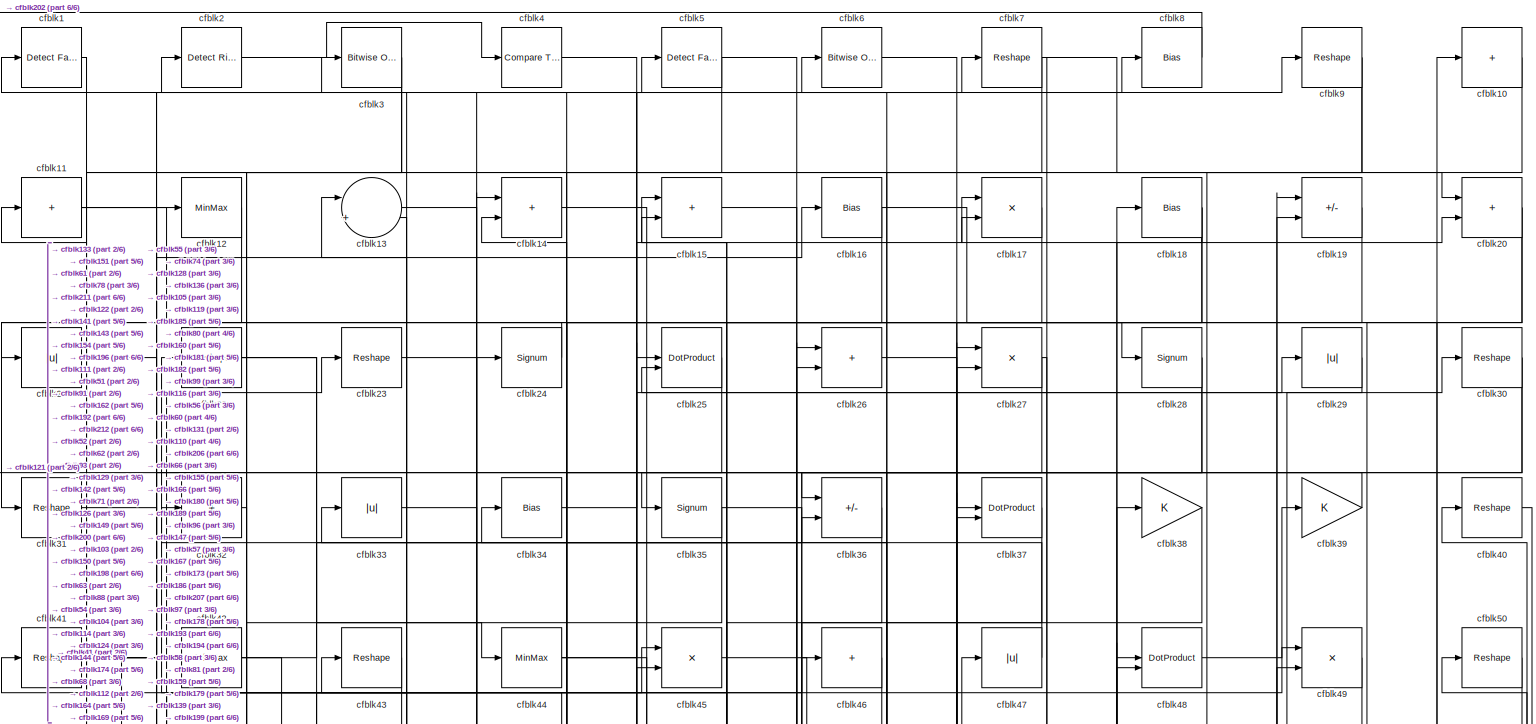
[diagram: root canvas - part 1/6, full width, top band]
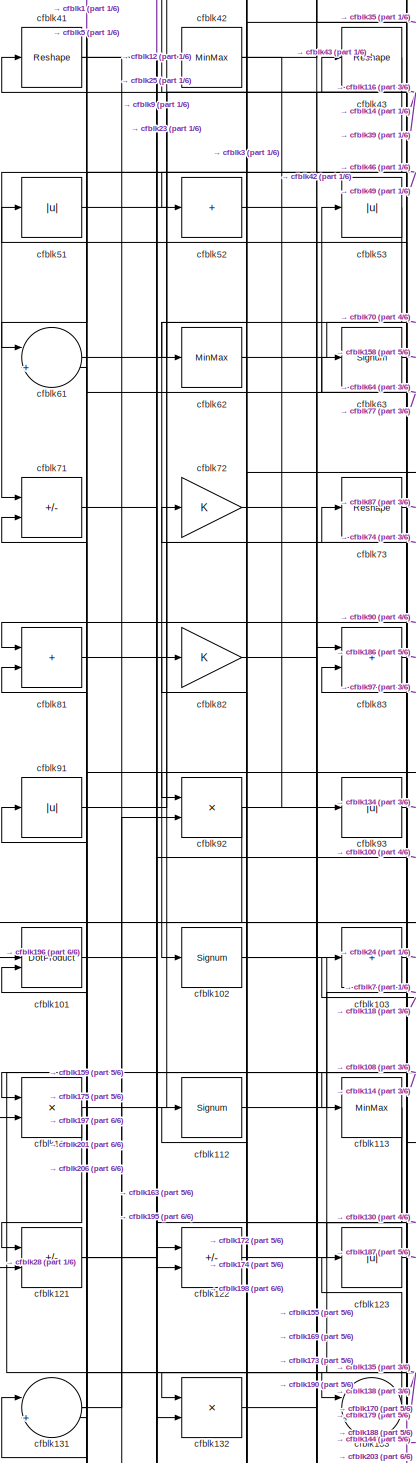
[diagram: root canvas - part 2/6, middle left region]
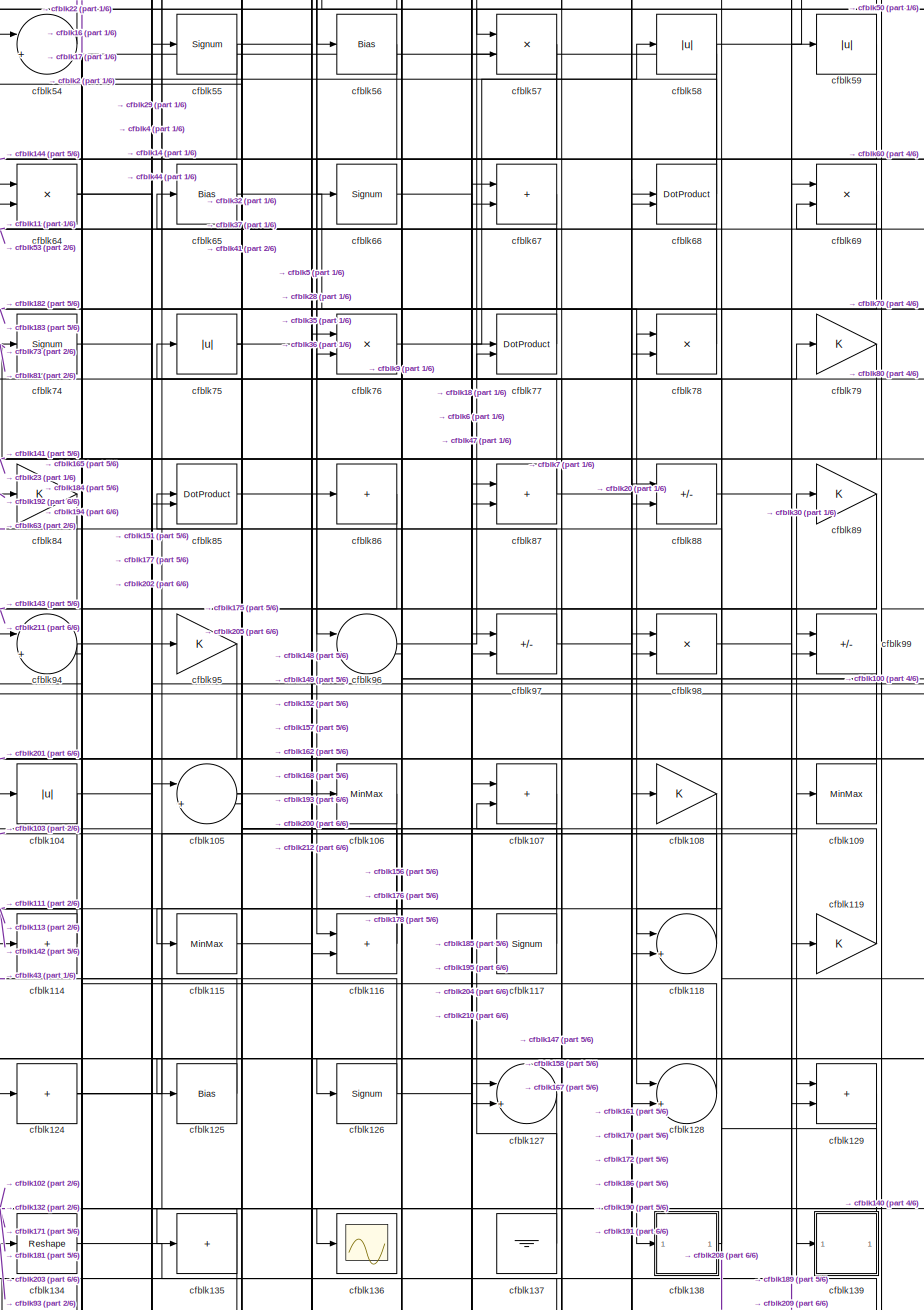
[diagram: root canvas - part 3/6, central region]
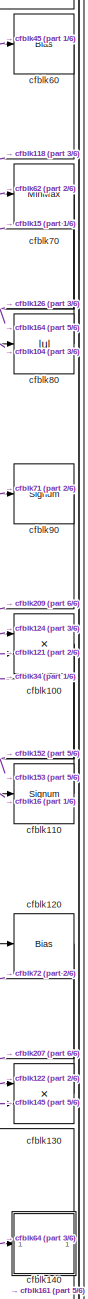
[diagram: root canvas - part 4/6, middle right region]
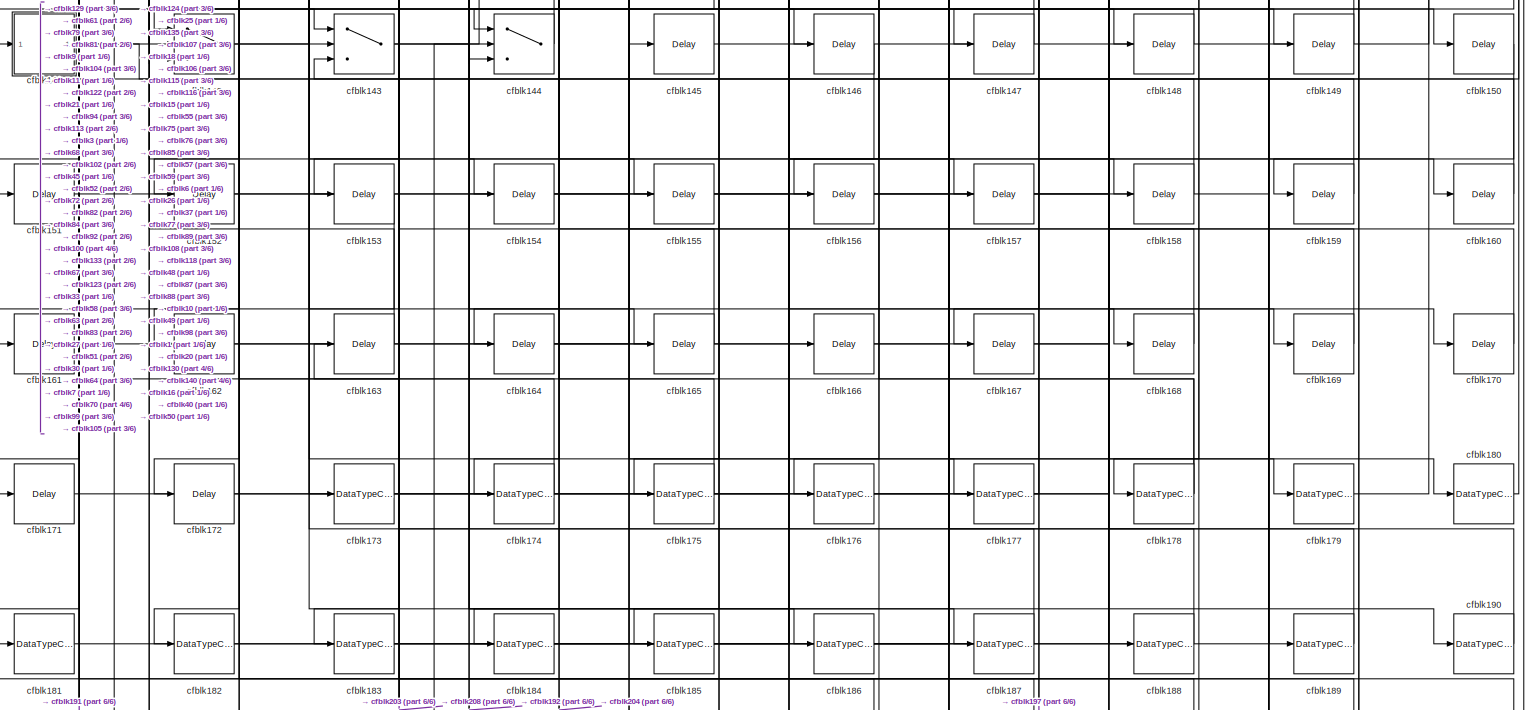
[diagram: root canvas - part 5/6, full width, bottom band]
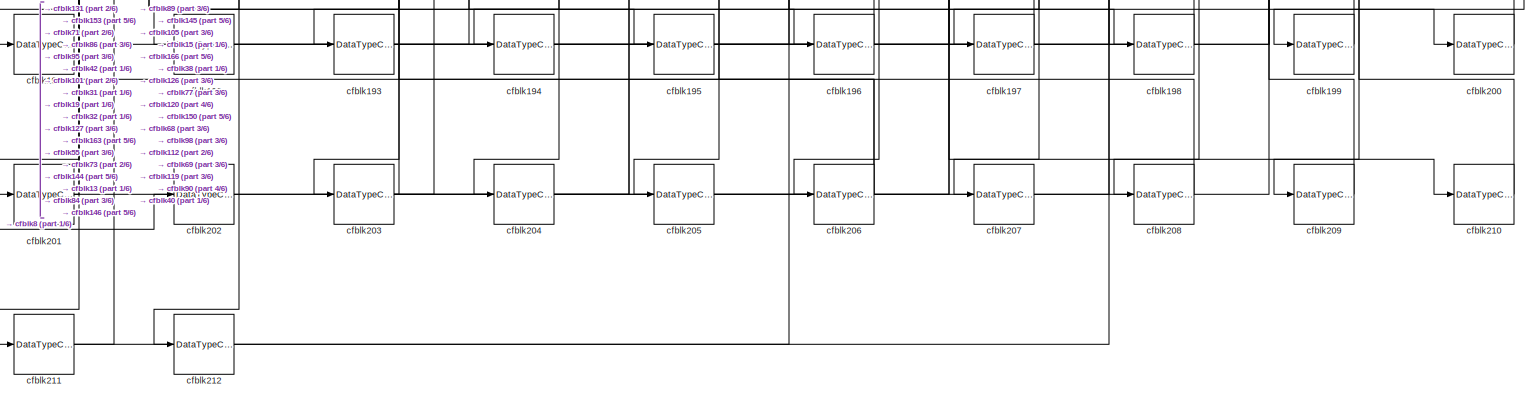
[diagram: root canvas - part 6/6, full width, bottom band]
MODEL slx_0709337c3f1b
KIND model
CONFIG AbsTol = auto
CONFIG EnableMultiTasking = off
CONFIG FixedStep = auto
CONFIG MaxStep = auto
CONFIG MinStep = auto
CONFIG RelTol = 1e-3
CONFIG SampleTimeConstraint = Unconstrained
CONFIG SolverName = VariableStepAuto
CONFIG StartTime = 0.0
CONFIG StopTime = 10.0
BLOCK [Reference] cfblk1  REF=hdlsllib/Logic and Bit
Operations/Detect Fall
Nonpositive
  SourceBlock = hdlsllib/Logic and Bit\nOperations/Detect Fall\nNonpositive
  SourceType = Detect Fall Nonpositive
BLOCK [Sum] cfblk10
  IconShape = rectangular
  Inputs = +
BLOCK [Product] cfblk100
  Inputs = */
  RndMeth = Zero
  SaturateOnIntegerOverflow = on
BLOCK [DotProduct] cfblk101
  OutDataTypeStr = Inherit: Inherit via internal rule
BLOCK [Signum] cfblk102
BLOCK [Sum] cfblk103
  IconShape = rectangular
  Inputs = +
BLOCK [Abs] cfblk104
  SaturateOnIntegerOverflow = off
BLOCK [Sum] cfblk105
  Inputs = |++
BLOCK [MinMax] cfblk106
BLOCK [Sum] cfblk107
  IconShape = rectangular
BLOCK [Gain] cfblk108
BLOCK [MinMax] cfblk109
BLOCK [Sum] cfblk11
  IconShape = rectangular
  Inputs = +
BLOCK [Signum] cfblk110
BLOCK [Product] cfblk111
  Inputs = */
  RndMeth = Zero
  SaturateOnIntegerOverflow = on
BLOCK [Signum] cfblk112
BLOCK [MinMax] cfblk113
BLOCK [Sum] cfblk114
  IconShape = rectangular
  Inputs = +
BLOCK [MinMax] cfblk115
BLOCK [Sum] cfblk116
  IconShape = rectangular
BLOCK [Signum] cfblk117
BLOCK [Sum] cfblk118
  Inputs = |++
BLOCK [Gain] cfblk119
BLOCK [MinMax] cfblk12
BLOCK [Bias] cfblk120
  Bias = 0.0
  SaturateOnIntegerOverflow = off
BLOCK [Sum] cfblk121
  IconShape = rectangular
  Inputs = +-
BLOCK [Sum] cfblk122
  IconShape = rectangular
  Inputs = +-
BLOCK [Abs] cfblk123
  SaturateOnIntegerOverflow = off
BLOCK [Sum] cfblk124
  IconShape = rectangular
  Inputs = +
BLOCK [Bias] cfblk125
  Bias = 0.0
  SaturateOnIntegerOverflow = off
BLOCK [Signum] cfblk126
BLOCK [Sum] cfblk127
  Inputs = |++
BLOCK [Sum] cfblk128
  Inputs = |++
BLOCK [Sum] cfblk129
  IconShape = rectangular
BLOCK [Sum] cfblk13
  Inputs = |++
BLOCK [Product] cfblk130
  Inputs = */
  RndMeth = Zero
  SaturateOnIntegerOverflow = on
BLOCK [Sum] cfblk131
  Inputs = |++
BLOCK [Product] cfblk132
  Inputs = */
  RndMeth = Zero
  SaturateOnIntegerOverflow = on
BLOCK [Sum] cfblk133
  Inputs = |++
BLOCK [Reshape] cfblk134
BLOCK [Sum] cfblk135
  IconShape = rectangular
  Inputs = +
BLOCK [Scope] cfblk136
  Floating = off
  NumInputPorts = 1
  ScopeSpecificationString = Simulink.scopes.TimeScopeBlockCfg('CurrentConfiguration', extmgr.ConfigurationSet(extmgr.Configuration('Core','General UI',true),extmgr.Configuration('Core','Source UI',true),extmgr.Configuration('Sources','WiredSimulink',true,'DataLoggingVariableName','ScopeData2','DataLoggingSaveFormat','Array','DataLoggingLimitDataPoints',true,'DataLoggingDecimation','1'),extmgr.Configuration('Visuals','Time Do...<+868ch>
BLOCK [Ground] cfblk137
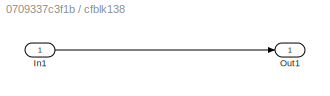
BLOCK [SubSystem] cfblk138
  LibrarySourceBlock = hdlsllib/Ports &\nSubsystems/Subsystem
BLOCK [Inport] cfblk138/In1
BLOCK [Outport] cfblk138/Out1
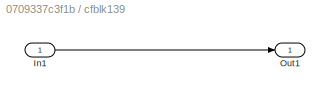
BLOCK [SubSystem] cfblk139
  LibrarySourceBlock = hdlsllib/Ports &\nSubsystems/Subsystem
BLOCK [Inport] cfblk139/In1
BLOCK [Outport] cfblk139/Out1
BLOCK [Sum] cfblk14
  IconShape = rectangular
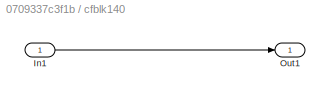
BLOCK [SubSystem] cfblk140
  LibrarySourceBlock = hdlsllib/Ports &\nSubsystems/Subsystem
BLOCK [Inport] cfblk140/In1
BLOCK [Outport] cfblk140/Out1
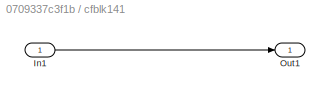
BLOCK [SubSystem] cfblk141
  LibrarySourceBlock = hdlsllib/Ports &\nSubsystems/Subsystem
BLOCK [Inport] cfblk141/In1
BLOCK [Outport] cfblk141/Out1
BLOCK [Switch] cfblk142
  InputSameDT = off
  SaturateOnIntegerOverflow = off
BLOCK [Switch] cfblk143
  InputSameDT = off
  SaturateOnIntegerOverflow = off
BLOCK [Switch] cfblk144
  InputSameDT = off
  SaturateOnIntegerOverflow = off
BLOCK [Delay] cfblk145
  InputPortMap = u0
  SampleTime = 1
BLOCK [Delay] cfblk146
  InputPortMap = u0
  SampleTime = 1
BLOCK [Delay] cfblk147
  InputPortMap = u0
  SampleTime = 1
BLOCK [Delay] cfblk148
  InputPortMap = u0
  SampleTime = 1
BLOCK [Delay] cfblk149
  InputPortMap = u0
  SampleTime = 1
BLOCK [Sum] cfblk15
  IconShape = rectangular
BLOCK [Delay] cfblk150
  InputPortMap = u0
  SampleTime = 1
BLOCK [Delay] cfblk151
  InputPortMap = u0
  SampleTime = 1
BLOCK [Delay] cfblk152
  InputPortMap = u0
  SampleTime = 1
BLOCK [Delay] cfblk153
  InputPortMap = u0
  SampleTime = 1
BLOCK [Delay] cfblk154
  InputPortMap = u0
  SampleTime = 1
BLOCK [Delay] cfblk155
  InputPortMap = u0
  SampleTime = 1
BLOCK [Delay] cfblk156
  InputPortMap = u0
  SampleTime = 1
BLOCK [Delay] cfblk157
  InputPortMap = u0
  SampleTime = 1
BLOCK [Delay] cfblk158
  InputPortMap = u0
  SampleTime = 1
BLOCK [Delay] cfblk159
  InputPortMap = u0
  SampleTime = 1
BLOCK [Bias] cfblk16
  Bias = 0.0
  SaturateOnIntegerOverflow = off
BLOCK [Delay] cfblk160
  InputPortMap = u0
  SampleTime = 1
BLOCK [Delay] cfblk161
  InputPortMap = u0
  SampleTime = 1
BLOCK [Delay] cfblk162
  InputPortMap = u0
  SampleTime = 1
BLOCK [Delay] cfblk163
  InputPortMap = u0
  SampleTime = 1
BLOCK [Delay] cfblk164
  InputPortMap = u0
  SampleTime = 1
BLOCK [Delay] cfblk165
  InputPortMap = u0
  SampleTime = 1
BLOCK [Delay] cfblk166
  InputPortMap = u0
  SampleTime = 1
BLOCK [Delay] cfblk167
  InputPortMap = u0
  SampleTime = 1
BLOCK [Delay] cfblk168
  InputPortMap = u0
  SampleTime = 1
BLOCK [Delay] cfblk169
  InputPortMap = u0
  SampleTime = 1
BLOCK [Product] cfblk17
  Inputs = */
  RndMeth = Zero
  SaturateOnIntegerOverflow = on
BLOCK [Delay] cfblk170
  InputPortMap = u0
  SampleTime = 1
BLOCK [Delay] cfblk171
  InputPortMap = u0
  SampleTime = 1
BLOCK [Delay] cfblk172
  InputPortMap = u0
  SampleTime = 1
BLOCK [DataTypeConversion] cfblk173
  OutDataTypeStr = uint8
  RndMeth = Floor
  SaturateOnIntegerOverflow = off
BLOCK [DataTypeConversion] cfblk174
  OutDataTypeStr = uint8
  RndMeth = Floor
  SaturateOnIntegerOverflow = off
BLOCK [DataTypeConversion] cfblk175
  OutDataTypeStr = uint8
  RndMeth = Floor
  SaturateOnIntegerOverflow = off
BLOCK [DataTypeConversion] cfblk176
  OutDataTypeStr = uint8
  RndMeth = Floor
  SaturateOnIntegerOverflow = off
BLOCK [DataTypeConversion] cfblk177
  OutDataTypeStr = uint8
  RndMeth = Floor
  SaturateOnIntegerOverflow = off
BLOCK [DataTypeConversion] cfblk178
  RndMeth = Floor
  SaturateOnIntegerOverflow = off
BLOCK [DataTypeConversion] cfblk179
  OutDataTypeStr = uint8
  RndMeth = Floor
  SaturateOnIntegerOverflow = off
BLOCK [Bias] cfblk18
  Bias = 0.0
  SaturateOnIntegerOverflow = off
BLOCK [DataTypeConversion] cfblk180
  OutDataTypeStr = uint8
  RndMeth = Floor
  SaturateOnIntegerOverflow = off
BLOCK [DataTypeConversion] cfblk181
  OutDataTypeStr = uint8
  RndMeth = Floor
  SaturateOnIntegerOverflow = off
BLOCK [DataTypeConversion] cfblk182
  OutDataTypeStr = uint8
  RndMeth = Floor
  SaturateOnIntegerOverflow = off
BLOCK [DataTypeConversion] cfblk183
  OutDataTypeStr = uint8
  RndMeth = Floor
  SaturateOnIntegerOverflow = off
BLOCK [DataTypeConversion] cfblk184
  OutDataTypeStr = uint8
  RndMeth = Floor
  SaturateOnIntegerOverflow = off
BLOCK [DataTypeConversion] cfblk185
  OutDataTypeStr = uint8
  RndMeth = Floor
  SaturateOnIntegerOverflow = off
BLOCK [DataTypeConversion] cfblk186
  RndMeth = Floor
  SaturateOnIntegerOverflow = off
BLOCK [DataTypeConversion] cfblk187
  OutDataTypeStr = uint8
  RndMeth = Floor
  SaturateOnIntegerOverflow = off
BLOCK [DataTypeConversion] cfblk188
  OutDataTypeStr = uint8
  RndMeth = Floor
  SaturateOnIntegerOverflow = off
BLOCK [DataTypeConversion] cfblk189
  OutDataTypeStr = uint8
  RndMeth = Floor
  SaturateOnIntegerOverflow = off
BLOCK [Sum] cfblk19
  IconShape = rectangular
  Inputs = +-
BLOCK [DataTypeConversion] cfblk190
  OutDataTypeStr = uint8
  RndMeth = Floor
  SaturateOnIntegerOverflow = off
BLOCK [DataTypeConversion] cfblk191
  OutDataTypeStr = uint8
  RndMeth = Floor
  SaturateOnIntegerOverflow = off
BLOCK [DataTypeConversion] cfblk192
  RndMeth = Floor
  SaturateOnIntegerOverflow = off
BLOCK [DataTypeConversion] cfblk193
  OutDataTypeStr = uint8
  RndMeth = Floor
  SaturateOnIntegerOverflow = off
BLOCK [DataTypeConversion] cfblk194
  OutDataTypeStr = uint8
  RndMeth = Floor
  SaturateOnIntegerOverflow = off
BLOCK [DataTypeConversion] cfblk195
  OutDataTypeStr = uint8
  RndMeth = Floor
  SaturateOnIntegerOverflow = off
BLOCK [DataTypeConversion] cfblk196
  OutDataTypeStr = uint8
  RndMeth = Floor
  SaturateOnIntegerOverflow = off
BLOCK [DataTypeConversion] cfblk197
  OutDataTypeStr = uint8
  RndMeth = Floor
  SaturateOnIntegerOverflow = off
BLOCK [DataTypeConversion] cfblk198
  OutDataTypeStr = uint8
  RndMeth = Floor
  SaturateOnIntegerOverflow = off
BLOCK [DataTypeConversion] cfblk199
  OutDataTypeStr = uint8
  RndMeth = Floor
  SaturateOnIntegerOverflow = off
BLOCK [Reference] cfblk2  REF=hdlsllib/Logic and Bit
Operations/Detect Rise
Nonnegative
  SourceBlock = hdlsllib/Logic and Bit\nOperations/Detect Rise\nNonnegative
  SourceType = Detect Rise Nonnegative
BLOCK [Sum] cfblk20
  IconShape = rectangular
BLOCK [DataTypeConversion] cfblk200
  OutDataTypeStr = uint8
  RndMeth = Floor
  SaturateOnIntegerOverflow = off
BLOCK [DataTypeConversion] cfblk201
  RndMeth = Floor
  SaturateOnIntegerOverflow = off
BLOCK [DataTypeConversion] cfblk202
  OutDataTypeStr = uint8
  RndMeth = Floor
  SaturateOnIntegerOverflow = off
BLOCK [DataTypeConversion] cfblk203
  RndMeth = Floor
  SaturateOnIntegerOverflow = off
BLOCK [DataTypeConversion] cfblk204
  OutDataTypeStr = uint8
  RndMeth = Floor
  SaturateOnIntegerOverflow = off
BLOCK [DataTypeConversion] cfblk205
  OutDataTypeStr = uint8
  RndMeth = Floor
  SaturateOnIntegerOverflow = off
BLOCK [DataTypeConversion] cfblk206
  RndMeth = Floor
  SaturateOnIntegerOverflow = off
BLOCK [DataTypeConversion] cfblk207
  OutDataTypeStr = uint8
  RndMeth = Floor
  SaturateOnIntegerOverflow = off
BLOCK [DataTypeConversion] cfblk208
  OutDataTypeStr = uint8
  RndMeth = Floor
  SaturateOnIntegerOverflow = off
BLOCK [DataTypeConversion] cfblk209
  OutDataTypeStr = uint8
  RndMeth = Floor
  SaturateOnIntegerOverflow = off
BLOCK [Abs] cfblk21
  SaturateOnIntegerOverflow = off
BLOCK [DataTypeConversion] cfblk210
  OutDataTypeStr = uint8
  RndMeth = Floor
  SaturateOnIntegerOverflow = off
BLOCK [DataTypeConversion] cfblk211
  RndMeth = Floor
  SaturateOnIntegerOverflow = off
BLOCK [DataTypeConversion] cfblk212
  OutDataTypeStr = uint8
  RndMeth = Floor
  SaturateOnIntegerOverflow = off
BLOCK [Reshape] cfblk22
BLOCK [Reshape] cfblk23
BLOCK [Signum] cfblk24
BLOCK [DotProduct] cfblk25
  OutDataTypeStr = Inherit: Inherit via internal rule
BLOCK [Sum] cfblk26
  IconShape = rectangular
BLOCK [Product] cfblk27
  Inputs = */
  RndMeth = Zero
  SaturateOnIntegerOverflow = on
BLOCK [Signum] cfblk28
BLOCK [Abs] cfblk29
  SaturateOnIntegerOverflow = off
BLOCK [Reference] cfblk3  REF=simulink/Logic and Bit
Operations/Bitwise
Operator
  LibrarySourceBlock = hdlsllib/Logic and Bit\nOperations/Bitwise\nOperator
  SourceBlock = simulink/Logic and Bit\nOperations/Bitwise\nOperator
  SourceType = Bitwise Operator
BLOCK [Reshape] cfblk30
BLOCK [Reshape] cfblk31
BLOCK [Sum] cfblk32
  IconShape = rectangular
  Inputs = +
BLOCK [Abs] cfblk33
  SaturateOnIntegerOverflow = off
BLOCK [Bias] cfblk34
  Bias = 0.0
  SaturateOnIntegerOverflow = off
BLOCK [Signum] cfblk35
BLOCK [Sum] cfblk36
  IconShape = rectangular
  Inputs = +-
BLOCK [DotProduct] cfblk37
  OutDataTypeStr = Inherit: Inherit via internal rule
BLOCK [Gain] cfblk38
BLOCK [Gain] cfblk39
BLOCK [Reference] cfblk4  REF=hdlsllib/Logic and Bit
Operations/Compare
To Zero
  SourceBlock = hdlsllib/Logic and Bit\nOperations/Compare\nTo Zero
  SourceType = Compare To Zero
BLOCK [Reshape] cfblk40
BLOCK [Reshape] cfblk41
BLOCK [MinMax] cfblk42
BLOCK [Reshape] cfblk43
BLOCK [MinMax] cfblk44
BLOCK [Product] cfblk45
  Inputs = */
  RndMeth = Zero
  SaturateOnIntegerOverflow = on
BLOCK [Sum] cfblk46
  IconShape = rectangular
  Inputs = +
BLOCK [Abs] cfblk47
  SaturateOnIntegerOverflow = off
BLOCK [DotProduct] cfblk48
  OutDataTypeStr = Inherit: Inherit via internal rule
BLOCK [Product] cfblk49
  Inputs = */
  RndMeth = Zero
  SaturateOnIntegerOverflow = on
BLOCK [Reference] cfblk5  REF=hdlsllib/Logic and Bit
Operations/Detect Fall
Negative
  SourceBlock = hdlsllib/Logic and Bit\nOperations/Detect Fall\nNegative
  SourceType = Detect Fall Negative
BLOCK [Reshape] cfblk50
BLOCK [Abs] cfblk51
  SaturateOnIntegerOverflow = off
BLOCK [Sum] cfblk52
  IconShape = rectangular
  Inputs = +
BLOCK [Abs] cfblk53
  SaturateOnIntegerOverflow = off
BLOCK [Sum] cfblk54
  Inputs = |++
BLOCK [Signum] cfblk55
BLOCK [Bias] cfblk56
  Bias = 0.0
  SaturateOnIntegerOverflow = off
BLOCK [Product] cfblk57
  Inputs = */
  RndMeth = Zero
  SaturateOnIntegerOverflow = on
BLOCK [Abs] cfblk58
  SaturateOnIntegerOverflow = off
BLOCK [Abs] cfblk59
  SaturateOnIntegerOverflow = off
BLOCK [Reference] cfblk6  REF=simulink/Logic and Bit
Operations/Bitwise
Operator
  LibrarySourceBlock = hdlsllib/Logic and Bit\nOperations/Bitwise\nOperator
  SourceBlock = simulink/Logic and Bit\nOperations/Bitwise\nOperator
  SourceType = Bitwise Operator
BLOCK [Bias] cfblk60
  Bias = 0.0
  SaturateOnIntegerOverflow = off
BLOCK [Sum] cfblk61
  Inputs = |++
BLOCK [MinMax] cfblk62
BLOCK [Signum] cfblk63
BLOCK [Product] cfblk64
  Inputs = */
  RndMeth = Zero
  SaturateOnIntegerOverflow = on
BLOCK [Bias] cfblk65
  Bias = 0.0
  SaturateOnIntegerOverflow = off
BLOCK [Signum] cfblk66
BLOCK [Sum] cfblk67
  IconShape = rectangular
BLOCK [DotProduct] cfblk68
  OutDataTypeStr = Inherit: Inherit via internal rule
BLOCK [Product] cfblk69
  Inputs = */
  RndMeth = Zero
  SaturateOnIntegerOverflow = on
BLOCK [Reshape] cfblk7
BLOCK [MinMax] cfblk70
BLOCK [Sum] cfblk71
  IconShape = rectangular
  Inputs = +-
BLOCK [Gain] cfblk72
BLOCK [Reshape] cfblk73
BLOCK [Signum] cfblk74
BLOCK [Abs] cfblk75
  SaturateOnIntegerOverflow = off
BLOCK [Product] cfblk76
  Inputs = */
  RndMeth = Zero
  SaturateOnIntegerOverflow = on
BLOCK [DotProduct] cfblk77
  OutDataTypeStr = Inherit: Inherit via internal rule
BLOCK [Product] cfblk78
  Inputs = */
  RndMeth = Zero
  SaturateOnIntegerOverflow = on
BLOCK [Gain] cfblk79
BLOCK [Bias] cfblk8
  Bias = 0.0
  SaturateOnIntegerOverflow = off
BLOCK [Abs] cfblk80
  SaturateOnIntegerOverflow = off
BLOCK [Sum] cfblk81
  IconShape = rectangular
BLOCK [Gain] cfblk82
BLOCK [Sum] cfblk83
  IconShape = rectangular
BLOCK [Gain] cfblk84
BLOCK [DotProduct] cfblk85
  OutDataTypeStr = Inherit: Inherit via internal rule
BLOCK [Sum] cfblk86
  IconShape = rectangular
  Inputs = +
BLOCK [Sum] cfblk87
  IconShape = rectangular
BLOCK [Sum] cfblk88
  IconShape = rectangular
  Inputs = +-
BLOCK [Gain] cfblk89
BLOCK [Reshape] cfblk9
BLOCK [Signum] cfblk90
BLOCK [Abs] cfblk91
  SaturateOnIntegerOverflow = off
BLOCK [Product] cfblk92
  Inputs = */
  RndMeth = Zero
  SaturateOnIntegerOverflow = on
BLOCK [Abs] cfblk93
  SaturateOnIntegerOverflow = off
BLOCK [Sum] cfblk94
  Inputs = |++
BLOCK [Gain] cfblk95
BLOCK [Sum] cfblk96
  Inputs = |++
BLOCK [Sum] cfblk97
  IconShape = rectangular
  Inputs = +-
BLOCK [Product] cfblk98
  Inputs = */
  RndMeth = Zero
  SaturateOnIntegerOverflow = on
BLOCK [Sum] cfblk99
  IconShape = rectangular
  Inputs = +-
NET cfblk100:1 -> cfblk152:1, cfblk153:1
LINE cfblk101:1 -> cfblk195:1
NET cfblk102:1 -> cfblk138:1, cfblk179:1
LINE cfblk103:1 -> cfblk24:1
NET cfblk104:1 -> cfblk142:3, cfblk80:1
NET cfblk105:1 -> cfblk200:1, cfblk205:1
LINE cfblk106:1 -> cfblk135:1
LINE cfblk107:1 -> cfblk175:1
LINE cfblk108:1 -> cfblk113:1
LINE cfblk109:1 -> cfblk65:1
LINE cfblk10:1 -> cfblk178:1
LINE cfblk110:1 -> cfblk34:1
NET cfblk111:1 -> cfblk121:1, cfblk23:1
LINE cfblk112:1 -> cfblk7:1
NET cfblk113:1 -> cfblk132:2, cfblk172:1
LINE cfblk114:1 -> cfblk111:1
LINE cfblk115:1 -> cfblk148:1
NET cfblk116:1 -> cfblk41:1, cfblk75:1
LINE cfblk117:1 -> cfblk54:1
LINE cfblk118:1 -> cfblk103:1
LINE cfblk119:1 -> cfblk32:1
NET cfblk11:1 -> cfblk154:1, cfblk28:1
LINE cfblk120:1 -> cfblk207:1
NET cfblk121:1 -> cfblk100:2, cfblk9:1
LINE cfblk122:1 -> cfblk130:1
LINE cfblk123:1 -> cfblk187:1
NET cfblk124:1 -> cfblk100:1, cfblk109:1, cfblk177:1
LINE cfblk125:1 -> cfblk94:1
NET cfblk126:1 -> cfblk210:1, cfblk43:1
LINE cfblk127:1 -> cfblk203:1
LINE cfblk128:1 -> cfblk14:2
LINE cfblk129:1 -> cfblk181:1
LINE cfblk12:1 -> cfblk31:1
LINE cfblk130:1 -> cfblk72:1
NET cfblk131:1 -> cfblk91:1, cfblk92:2
LINE cfblk132:1 -> cfblk64:1
LINE cfblk133:1 -> cfblk123:1
LINE cfblk134:1 -> cfblk89:1
NET cfblk135:1 -> cfblk132:1, cfblk171:1
LINE cfblk137:1 -> cfblk117:1
LINE cfblk138/In1:1 -> cfblk138/Out1:1
LINE cfblk138:1 -> cfblk78:1
LINE cfblk139/In1:1 -> cfblk139/Out1:1
LINE cfblk139:1 -> cfblk85:1
LINE cfblk13:1 -> cfblk198:1
LINE cfblk140/In1:1 -> cfblk140/Out1:1
NET cfblk140:1 -> cfblk120:1, cfblk161:1
LINE cfblk141/In1:1 -> cfblk141/Out1:1
NET cfblk141:1 -> cfblk16:1, cfblk40:1
NET cfblk142:1 -> cfblk146:1, cfblk45:1
NET cfblk143:1 -> cfblk165:1, cfblk27:2
LINE cfblk144:1 -> cfblk51:1
LINE cfblk145:1 -> cfblk130:2
LINE cfblk146:1 -> cfblk204:1
LINE cfblk147:1 -> cfblk87:1
LINE cfblk148:1 -> cfblk142:1
LINE cfblk149:1 -> cfblk1:1
LINE cfblk14:1 -> cfblk136:1
LINE cfblk150:1 -> cfblk197:1
LINE cfblk151:1 -> cfblk105:1
LINE cfblk152:1 -> cfblk76:1
LINE cfblk153:1 -> cfblk191:1
LINE cfblk154:1 -> cfblk49:2
LINE cfblk155:1 -> cfblk27:1
LINE cfblk156:1 -> cfblk88:1
LINE cfblk157:1 -> cfblk188:1
LINE cfblk158:1 -> cfblk77:2
LINE cfblk159:1 -> cfblk81:2
LINE cfblk15:1 -> cfblk160:1
LINE cfblk160:1 -> cfblk143:3
LINE cfblk161:1 -> cfblk118:2
LINE cfblk162:1 -> cfblk116:2
LINE cfblk163:1 -> cfblk122:1
LINE cfblk164:1 -> cfblk45:2
LINE cfblk165:1 -> cfblk94:2
LINE cfblk166:1 -> cfblk37:2
LINE cfblk167:1 -> cfblk48:2
LINE cfblk168:1 -> cfblk68:1
LINE cfblk169:1 -> cfblk25:1
NET cfblk16:1 -> cfblk110:1, cfblk114:1
LINE cfblk170:1 -> cfblk133:2
LINE cfblk171:1 -> cfblk106:1
LINE cfblk172:1 -> cfblk108:1
LINE cfblk173:1 -> cfblk18:1
LINE cfblk174:1 -> cfblk82:1
LINE cfblk175:1 -> cfblk61:2
LINE cfblk176:1 -> cfblk107:1
LINE cfblk177:1 -> cfblk107:2
NET cfblk178:1 -> cfblk64:2, cfblk6:1
LINE cfblk179:1 -> cfblk10:1
LINE cfblk17:1 -> cfblk104:1
LINE cfblk180:1 -> cfblk50:1
LINE cfblk181:1 -> cfblk26:1
LINE cfblk182:1 -> cfblk26:2
LINE cfblk183:1 -> cfblk85:2
LINE cfblk184:1 -> cfblk67:1
LINE cfblk185:1 -> cfblk67:2
NET cfblk186:1 -> cfblk48:1, cfblk99:2
LINE cfblk187:1 -> cfblk83:1
LINE cfblk188:1 -> cfblk83:2
LINE cfblk189:1 -> cfblk37:1
NET cfblk18:1 -> cfblk17:2, cfblk185:1, cfblk57:2
LINE cfblk190:1 -> cfblk98:1
LINE cfblk191:1 -> cfblk98:2
NET cfblk192:1 -> cfblk166:1, cfblk84:1
LINE cfblk193:1 -> cfblk19:1
LINE cfblk194:1 -> cfblk19:2
LINE cfblk195:1 -> cfblk77:1
LINE cfblk196:1 -> cfblk101:1
LINE cfblk197:1 -> cfblk101:2
LINE cfblk198:1 -> cfblk112:1
LINE cfblk199:1 -> cfblk13:1
LINE cfblk19:1 -> cfblk192:1
LINE cfblk1:1 -> cfblk133:1
LINE cfblk200:1 -> cfblk13:2
NET cfblk201:1 -> cfblk119:1, cfblk71:2
LINE cfblk202:1 -> cfblk95:1
NET cfblk203:1 -> cfblk144:2, cfblk145:1, cfblk73:1
LINE cfblk204:1 -> cfblk127:1
LINE cfblk205:1 -> cfblk127:2
NET cfblk206:1 -> cfblk131:1, cfblk15:2
LINE cfblk207:1 -> cfblk38:1
LINE cfblk208:1 -> cfblk163:1
LINE cfblk209:1 -> cfblk69:1
NET cfblk20:1 -> cfblk124:1, cfblk159:1
LINE cfblk210:1 -> cfblk69:2
NET cfblk211:1 -> cfblk42:1, cfblk68:2
LINE cfblk212:1 -> cfblk86:1
LINE cfblk21:1 -> cfblk143:1
NET cfblk22:1 -> cfblk129:1, cfblk44:1
LINE cfblk23:1 -> cfblk88:2
LINE cfblk24:1 -> cfblk21:1
LINE cfblk25:1 -> cfblk122:2
LINE cfblk26:1 -> cfblk180:1
NET cfblk27:1 -> cfblk147:1, cfblk36:1
NET cfblk28:1 -> cfblk121:2, cfblk96:1
LINE cfblk29:1 -> cfblk25:2
LINE cfblk2:1 -> cfblk4:1
NET cfblk30:1 -> cfblk144:1, cfblk96:2
LINE cfblk31:1 -> cfblk196:1
LINE cfblk32:1 -> cfblk212:1
LINE cfblk33:1 -> cfblk150:1
LINE cfblk34:1 -> cfblk8:1
NET cfblk35:1 -> cfblk52:1, cfblk56:1
LINE cfblk36:1 -> cfblk116:1
LINE cfblk37:1 -> cfblk105:2
LINE cfblk38:1 -> cfblk206:1
LINE cfblk39:1 -> cfblk35:1
NET cfblk3:1 -> cfblk162:1, cfblk62:1
LINE cfblk40:1 -> cfblk199:1
NET cfblk41:1 -> cfblk12:1, cfblk3:1
NET cfblk42:1 -> cfblk36:2, cfblk93:1
LINE cfblk43:1 -> cfblk71:1
NET cfblk44:1 -> cfblk128:1, cfblk17:1
LINE cfblk45:1 -> cfblk60:1
LINE cfblk46:1 -> cfblk131:2
LINE cfblk47:1 -> cfblk33:1
LINE cfblk48:1 -> cfblk49:1
LINE cfblk49:1 -> cfblk81:1
LINE cfblk4:1 -> cfblk55:1
LINE cfblk50:1 -> cfblk139:1
LINE cfblk51:1 -> cfblk39:1
LINE cfblk52:1 -> cfblk169:1
LINE cfblk53:1 -> cfblk102:1
LINE cfblk54:1 -> cfblk22:1
NET cfblk55:1 -> cfblk168:1, cfblk193:1
LINE cfblk56:1 -> cfblk125:1
NET cfblk57:1 -> cfblk176:1, cfblk97:2
NET cfblk58:1 -> cfblk144:3, cfblk30:1
LINE cfblk59:1 -> cfblk156:1
NET cfblk5:1 -> cfblk61:1, cfblk99:1
LINE cfblk60:1 -> cfblk118:1
LINE cfblk61:1 -> cfblk46:1
NET cfblk62:1 -> cfblk70:1, cfblk92:1
NET cfblk63:1 -> cfblk158:1, cfblk5:1
NET cfblk64:1 -> cfblk129:2, cfblk140:1
LINE cfblk65:1 -> cfblk78:2
LINE cfblk66:1 -> cfblk128:2
LINE cfblk67:1 -> cfblk183:1
NET cfblk68:1 -> cfblk182:1, cfblk2:1, cfblk54:2
LINE cfblk69:1 -> cfblk208:1
LINE cfblk6:1 -> cfblk97:1
NET cfblk70:1 -> cfblk126:1, cfblk164:1
LINE cfblk71:1 -> cfblk90:1
LINE cfblk72:1 -> cfblk190:1
LINE cfblk73:1 -> cfblk87:2
LINE cfblk74:1 -> cfblk29:1
NET cfblk75:1 -> cfblk115:1, cfblk149:1
LINE cfblk76:1 -> cfblk58:1
LINE cfblk77:1 -> cfblk53:1
LINE cfblk78:1 -> cfblk11:1
LINE cfblk79:1 -> cfblk141:1
NET cfblk7:1 -> cfblk174:1, cfblk20:1, cfblk57:1
LINE cfblk80:1 -> cfblk15:1
LINE cfblk81:1 -> cfblk74:1
LINE cfblk82:1 -> cfblk173:1
LINE cfblk83:1 -> cfblk186:1
LINE cfblk84:1 -> cfblk143:2
LINE cfblk85:1 -> cfblk157:1
LINE cfblk86:1 -> cfblk211:1
NET cfblk87:1 -> cfblk170:1, cfblk76:2
LINE cfblk88:1 -> cfblk59:1
NET cfblk89:1 -> cfblk167:1, cfblk194:1
LINE cfblk8:1 -> cfblk202:1
LINE cfblk90:1 -> cfblk209:1
LINE cfblk91:1 -> cfblk14:1
NET cfblk92:1 -> cfblk111:2, cfblk155:1
LINE cfblk93:1 -> cfblk134:1
NET cfblk94:1 -> cfblk142:2, cfblk79:1
LINE cfblk95:1 -> cfblk201:1
LINE cfblk96:1 -> cfblk47:1
NET cfblk97:1 -> cfblk20:2, cfblk63:1
LINE cfblk98:1 -> cfblk189:1
LINE cfblk99:1 -> cfblk184:1
NET cfblk9:1 -> cfblk151:1, cfblk66:1
note: NET lines group one-source signal fan-out (src -> all destinations, sorted); 1:1 wires keep LINE
